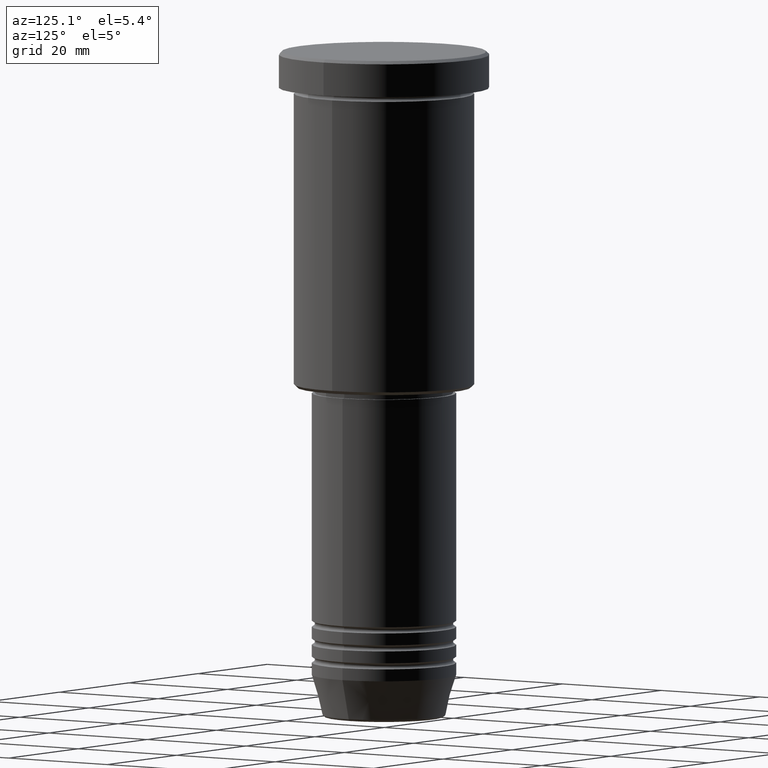
[diagram: clean part render]
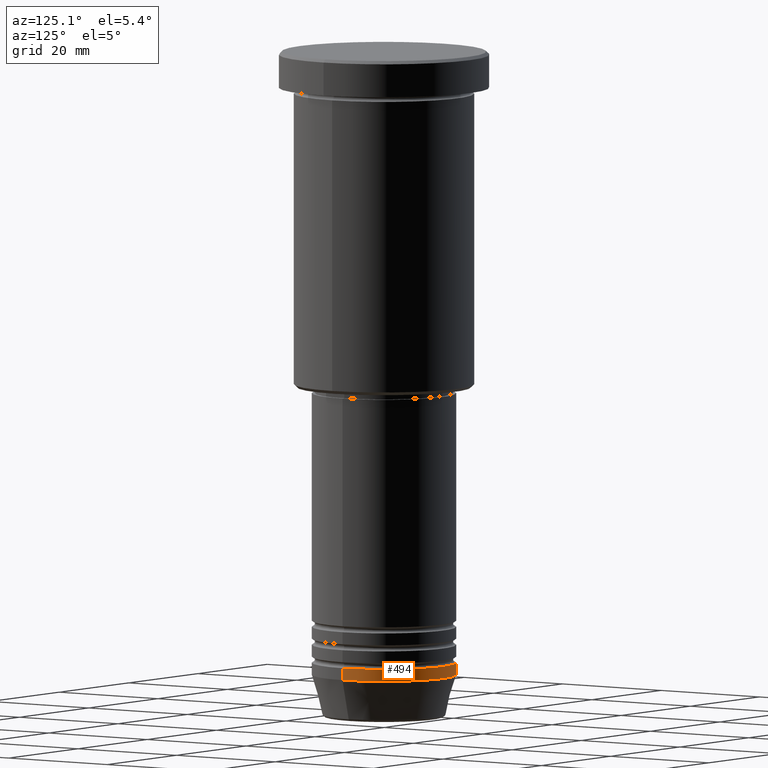
[diagram: same view with one face highlighted and labeled with its STEP entity id]
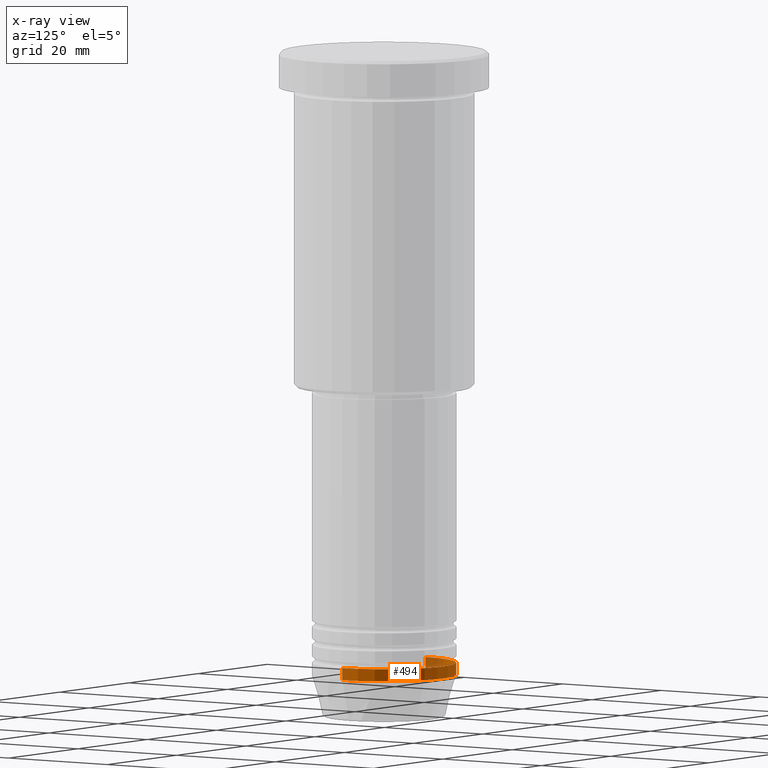
[diagram: x-ray of the same camera — body ghosted, the highlighted face saturated]
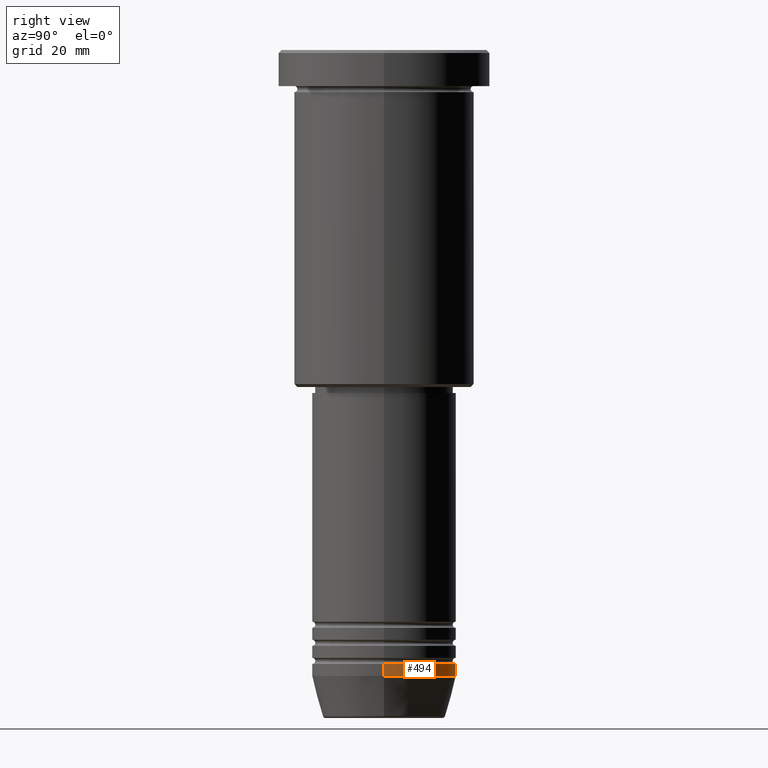
[diagram: same view with one face highlighted and labeled with its STEP entity id]
A machine part, auxiliary view. The second image highlights one B-rep face of the part: STEP entity #494.
The next image is the same camera in x-ray: the body ghosted, the highlighted face saturated — about 11% of this face is hidden behind the body in this view.
A second angle (right view) of the same face is appended — the face is thin or edge-on in the first view.
In plain terms, the highlighted cylindrical surface (partial cylindrical patch) has radius 12 mm, axis along (-0, -0, 1).
Its self-contained STEP definition (entity closure, byte-faithful):
#38 = DIRECTION ( 'NONE',  ( -0.000000000000000000, -0.000000000000000000, 1.000000000000000000 ) ) ;
#46 = VECTOR ( 'NONE', #414, 1000.000000000000000 ) ;
#94 = CARTESIAN_POINT ( 'NONE',  ( -12.00000000000000000, 1.469576158976823947E-15, -102.0000000000000142 ) ) ;
#152 = CARTESIAN_POINT ( 'NONE',  ( 0.000000000000000000, 0.000000000000000000, 0.000000000000000000 ) ) ;
#167 = DIRECTION ( 'NONE',  ( -0.000000000000000000, -0.000000000000000000, 1.000000000000000000 ) ) ;
#240 = VERTEX_POINT ( 'NONE', #743 ) ;
#242 = LINE ( 'NONE', #884, #46 ) ;
#245 = EDGE_CURVE ( 'NONE', #240, #298, #883, .T. ) ;
#298 = VERTEX_POINT ( 'NONE', #585 ) ;
#306 = VERTEX_POINT ( 'NONE', #1043 ) ;
#324 = LINE ( 'NONE', #980, #790 ) ;
#346 = DIRECTION ( 'NONE',  ( 1.000000000000000000, 0.000000000000000000, 0.000000000000000000 ) ) ;
#380 = ORIENTED_EDGE ( 'NONE', *, *, #245, .T. ) ;
#385 = CARTESIAN_POINT ( 'NONE',  ( 0.000000000000000000, 0.000000000000000000, -102.0000000000000142 ) ) ;
#414 = DIRECTION ( 'NONE',  ( -0.000000000000000000, -0.000000000000000000, 1.000000000000000000 ) ) ;
#419 = EDGE_LOOP ( 'NONE', ( #380, #1119, #649, #733 ) ) ;
#433 = CYLINDRICAL_SURFACE ( 'NONE', #905, 12.00000000000000000 ) ;
#440 = EDGE_CURVE ( 'NONE', #298, #748, #242, .T. ) ;
#442 = FACE_OUTER_BOUND ( 'NONE', #419, .T. ) ;
#473 = CIRCLE ( 'NONE', #950, 12.00000000000000000 ) ;
#494 = ADVANCED_FACE ( 'NONE', ( #442 ), #433, .T. ) ;
#538 = CARTESIAN_POINT ( 'NONE',  ( 0.000000000000000000, 0.000000000000000000, -104.0000000000000142 ) ) ;
#585 = CARTESIAN_POINT ( 'NONE',  ( -12.00000000000000000, 1.469576158976823947E-15, -104.0000000000000142 ) ) ;
#649 = ORIENTED_EDGE ( 'NONE', *, *, #854, .F. ) ;
#733 = ORIENTED_EDGE ( 'NONE', *, *, #1153, .F. ) ;
#743 = CARTESIAN_POINT ( 'NONE',  ( 12.00000000000000000, 0.000000000000000000, -104.0000000000000142 ) ) ;
#748 = VERTEX_POINT ( 'NONE', #94 ) ;
#790 = VECTOR ( 'NONE', #1152, 1000.000000000000000 ) ;
#854 = EDGE_CURVE ( 'NONE', #306, #748, #473, .T. ) ;
#883 = CIRCLE ( 'NONE', #1111, 12.00000000000000000 ) ;
#884 = CARTESIAN_POINT ( 'NONE',  ( -12.00000000000000000, 1.469576158976823947E-15, 0.000000000000000000 ) ) ;
#905 = AXIS2_PLACEMENT_3D ( 'NONE', #152, #167, #1076 ) ;
#934 = DIRECTION ( 'NONE',  ( -0.000000000000000000, -0.000000000000000000, 1.000000000000000000 ) ) ;
#950 = AXIS2_PLACEMENT_3D ( 'NONE', #385, #38, #954 ) ;
#954 = DIRECTION ( 'NONE',  ( 1.000000000000000000, 0.000000000000000000, 0.000000000000000000 ) ) ;
#980 = CARTESIAN_POINT ( 'NONE',  ( 12.00000000000000000, 0.000000000000000000, 0.000000000000000000 ) ) ;
#1043 = CARTESIAN_POINT ( 'NONE',  ( 12.00000000000000000, 0.000000000000000000, -102.0000000000000142 ) ) ;
#1076 = DIRECTION ( 'NONE',  ( 1.000000000000000000, 0.000000000000000000, 0.000000000000000000 ) ) ;
#1111 = AXIS2_PLACEMENT_3D ( 'NONE', #538, #934, #346 ) ;
#1119 = ORIENTED_EDGE ( 'NONE', *, *, #440, .T. ) ;
#1152 = DIRECTION ( 'NONE',  ( -0.000000000000000000, -0.000000000000000000, 1.000000000000000000 ) ) ;
#1153 = EDGE_CURVE ( 'NONE', #240, #306, #324, .T. ) ;